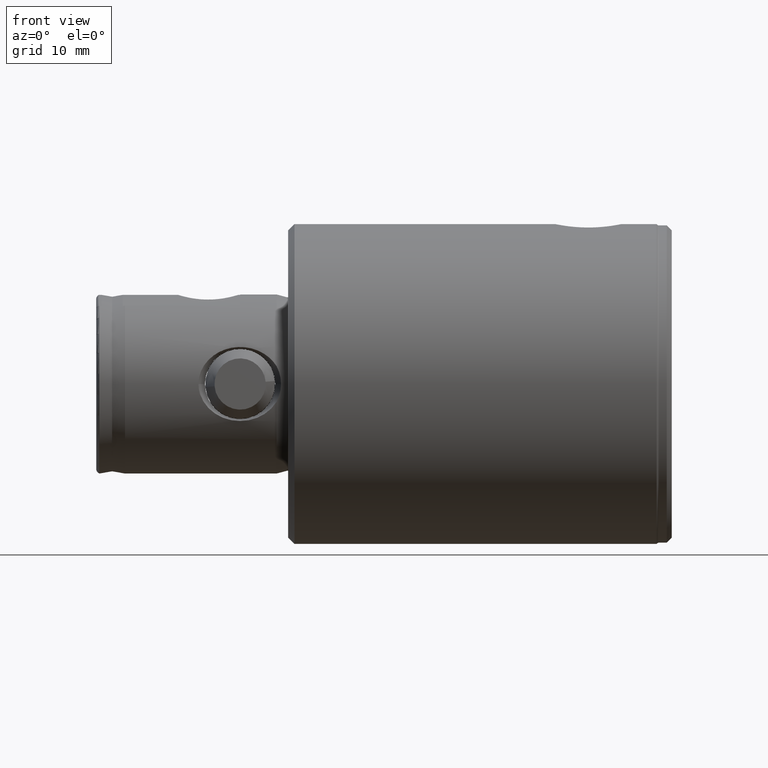
[diagram: clean part render]
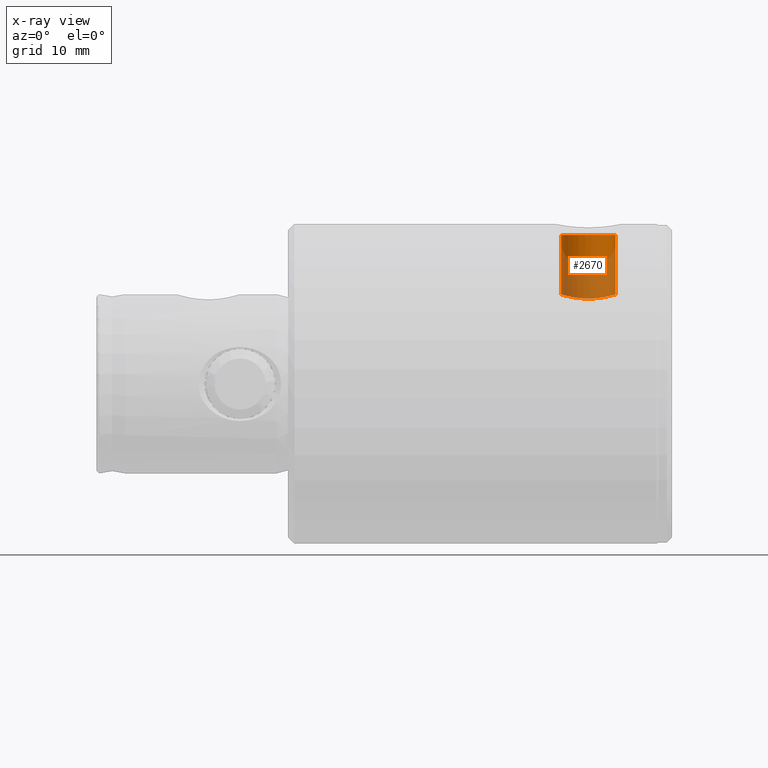
[diagram: x-ray — body ghosted, one internal face saturated and labeled with its STEP entity id]
A machine part, front view, then the same camera in x-ray: the body is ghosted and one INTERNAL B-rep face — a face not visible from any outside direction — is saturated and labeled: STEP entity #2670.
In plain terms, the highlighted cylindrical surface (edge-blend (fillet) strip) has radius 4.25 mm, axis along (0, 0, 1).
Its self-contained STEP definition (entity closure, byte-faithful):
#22 = CARTESIAN_POINT ( 'NONE',  ( 13.33932668607541500, -4.249983948492023900, 13.33035233564601900 ) ) ;
#37 = CARTESIAN_POINT ( 'NONE',  ( 13.63059045167135100, -3.201054713646467300, 10.24079459623629000 ) ) ;
#69 = FACE_OUTER_BOUND ( 'NONE', #2763, .T. ) ;
#87 = VERTEX_POINT ( 'NONE', #1549 ) ;
#159 = DIRECTION ( 'NONE',  ( 1.000000000000000000, 0.0000000000000000000, 0.0000000000000000000 ) ) ;
#341 = VERTEX_POINT ( 'NONE', #3772 ) ;
#404 = CARTESIAN_POINT ( 'NONE',  ( 14.00000000000000000, 1.714460522538868100E-015, 17.29999999999999700 ) ) ;
#656 = CARTESIAN_POINT ( 'NONE',  ( 23.30000000000000100, 5.204748896376247700E-016, 17.29999999999999700 ) ) ;
#763 = CARTESIAN_POINT ( 'NONE',  ( 13.75940299173870900, -2.594885082865043800, 9.672738791779407200 ) ) ;
#779 = CARTESIAN_POINT ( 'NONE',  ( 13.63061436005980000, -3.201041237455417100, 15.85940078557754700 ) ) ;
#796 = CARTESIAN_POINT ( 'NONE',  ( 13.93468727037412000, -1.375147865201417300, 17.08093634506138200 ) ) ;
#1036 = CYLINDRICAL_SURFACE ( 'NONE', #3567, 4.249999999999994700 ) ;
#1098 = CARTESIAN_POINT ( 'NONE',  ( 13.75919563460978000, -2.595942206799388300, 16.42640924192964700 ) ) ;
#1117 = CARTESIAN_POINT ( 'NONE',  ( 13.47025121831974900, -3.816401027698225000, 14.94108567448448200 ) ) ;
#1229 = CARTESIAN_POINT ( 'NONE',  ( 14.00000000000000000, 4.197627457788430000E-017, 8.800000000000006000 ) ) ;
#1256 = EDGE_CURVE ( 'NONE', #3499, #87, #4609, .T. ) ;
#1317 = DIRECTION ( 'NONE',  ( 0.0000000000000000000, 0.0000000000000000000, -1.000000000000000000 ) ) ;
#1324 = DIRECTION ( 'NONE',  ( 0.0000000000000000000, 0.0000000000000000000, -1.000000000000000000 ) ) ;
#1488 = CARTESIAN_POINT ( 'NONE',  ( 13.99161468989642300, -0.5577369079409398900, 17.27262415576947100 ) ) ;
#1505 = CARTESIAN_POINT ( 'NONE',  ( 13.95884723832719800, -1.107042985317447700, 8.937258822649381400 ) ) ;
#1549 = CARTESIAN_POINT ( 'NONE',  ( 23.30000000000000100, 0.0000000000000000000, 8.800000000000004300 ) ) ;
#1827 = CARTESIAN_POINT ( 'NONE',  ( 13.83801929084845000, -2.136259010188938500, 16.73448812610610800 ) ) ;
#1844 = CARTESIAN_POINT ( 'NONE',  ( 13.40736410117609400, -4.031770398640691000, 14.42329868750436000 ) ) ;
#1858 = CARTESIAN_POINT ( 'NONE',  ( 13.34814020817882100, -4.222608495657211400, 12.49316191261329900 ) ) ;
#1874 = CARTESIAN_POINT ( 'NONE',  ( 14.00000000000000000, 4.197627457788430000E-017, 8.800000000000006000 ) ) ;
#1888 = CARTESIAN_POINT ( 'NONE',  ( 13.87409137768994100, -1.891086138219405100, 9.233795946973918600 ) ) ;
#2213 = CARTESIAN_POINT ( 'NONE',  ( 13.38246741836600000, -4.112521852443302700, 14.15762351158339000 ) ) ;
#2223 = CARTESIAN_POINT ( 'NONE',  ( 13.33931646227546300, -4.250016037563900900, 12.77013454126730900 ) ) ;
#2290 = CARTESIAN_POINT ( 'NONE',  ( 25.00000000000000000, 5.204748896376245800E-016, 17.29999999999999700 ) ) ;
#2345 = LINE ( 'NONE', #2290, #2908 ) ;
#2390 = CARTESIAN_POINT ( 'NONE',  ( 23.30000000000000100, 0.0000000000000000000, 13.05000000000000100 ) ) ;
#2480 = ORIENTED_EDGE ( 'NONE', *, *, #3465, .F. ) ;
#2570 = CARTESIAN_POINT ( 'NONE',  ( 13.38218684644611200, -4.113434663587251600, 11.94539761381763800 ) ) ;
#2588 = CARTESIAN_POINT ( 'NONE',  ( 13.71621412343870700, -2.811621855963745400, 9.851067550047290000 ) ) ;
#2625 = VERTEX_POINT ( 'NONE', #1229 ) ;
#2670 = ADVANCED_FACE ( 'NONE', ( #69 ), #1036, .F. ) ;
#2752 = ORIENTED_EDGE ( 'NONE', *, *, #4345, .T. ) ;
#2763 = EDGE_LOOP ( 'NONE', ( #3796, #2752, #4266, #2480 ) ) ;
#2908 = VECTOR ( 'NONE', #159, 1000.000000000000000 ) ;
#2930 = CARTESIAN_POINT ( 'NONE',  ( 13.46980004449781100, -3.817954335628924500, 11.16252591277617700 ) ) ;
#2943 = CARTESIAN_POINT ( 'NONE',  ( 13.71680487309033900, -2.808839068035712500, 16.25153414283997600 ) ) ;
#3169 = DIRECTION ( 'NONE',  ( 1.000000000000000000, 0.0000000000000000000, 0.0000000000000000000 ) ) ;
#3255 = CARTESIAN_POINT ( 'NONE',  ( 13.95871042767950100, -1.109394107247935600, 17.16228281300919900 ) ) ;
#3269 = CARTESIAN_POINT ( 'NONE',  ( 13.87457091845613100, -1.887544119491204800, 16.86793879810546000 ) ) ;
#3283 = CARTESIAN_POINT ( 'NONE',  ( 13.99145706630628500, -0.5604369331183652900, 8.827904003079416000 ) ) ;
#3301 = CARTESIAN_POINT ( 'NONE',  ( 13.58769960150436900, -3.376420439493240000, 10.45378158391091700 ) ) ;
#3319 = CARTESIAN_POINT ( 'NONE',  ( 13.50726453199491100, -3.684955578275322300, 15.18530457971730200 ) ) ;
#3384 = AXIS2_PLACEMENT_3D ( 'NONE', #2390, #3457, #1324 ) ;
#3450 = DIRECTION ( 'NONE',  ( 1.000000000000000000, 0.0000000000000000000, 0.0000000000000000000 ) ) ;
#3457 = DIRECTION ( 'NONE',  ( 1.000000000000000000, 0.0000000000000000000, 0.0000000000000000000 ) ) ;
#3465 = EDGE_CURVE ( 'NONE', #2625, #87, #4413, .T. ) ;
#3499 = VERTEX_POINT ( 'NONE', #656 ) ;
#3538 = CARTESIAN_POINT ( 'NONE',  ( 25.00000000000000000, 0.0000000000000000000, 13.05000000000000100 ) ) ;
#3567 = AXIS2_PLACEMENT_3D ( 'NONE', #3538, #3450, #1317 ) ;
#3611 = CARTESIAN_POINT ( 'NONE',  ( 13.58718470714661900, -3.378387852960554200, 15.64324483552801600 ) ) ;
#3629 = CARTESIAN_POINT ( 'NONE',  ( 13.99999999999999600, -0.2825293081335512000, 8.800000000000006000 ) ) ;
#3648 = CARTESIAN_POINT ( 'NONE',  ( 13.83833422969328500, -2.134269202711549100, 9.364322744435682500 ) ) ;
#3660 = CARTESIAN_POINT ( 'NONE',  ( 13.93436805029888200, -1.378406825819494800, 9.020159459850493300 ) ) ;
#3749 = B_SPLINE_CURVE_WITH_KNOTS ( 'NONE', 3,
 ( #404, #3962, #1488, #3255, #796, #3269, #1827, #1098, #2943, #779, #3611, #3319, #1117, #1844, #2213, #4354, #22, #2223, #1858, #2570, #3976, #2930, #4332, #3301, #37, #2588, #763, #3648, #1888, #3660, #1505, #3283, #3629, #1874 ),
 .UNSPECIFIED., .F., .F.,
 ( 4, 2, 2, 2, 2, 2, 2, 2, 2, 2, 2, 2, 2, 2, 2, 2, 4 ),
 ( 0.01336677257313558800, 0.01420197166329698100, 0.01503717075345837300, 0.01587236984361976500, 0.01670756893378115900, 0.01754276802394255000, 0.01837796711410394700, 0.01921316620426534400, 0.02004836529442674200, 0.02088356438458813900, 0.02171876347474953300, 0.02255396256491093400, 0.02338916165507232800, 0.02422436074523372600, 0.02505955983539512300, 0.02589475892555651700, 0.02672995801571791800 ),
 .UNSPECIFIED. ) ;
#3772 = CARTESIAN_POINT ( 'NONE',  ( 14.00000000000000000, 1.714460522538868100E-015, 17.29999999999999700 ) ) ;
#3796 = ORIENTED_EDGE ( 'NONE', *, *, #4214, .F. ) ;
#3891 = CARTESIAN_POINT ( 'NONE',  ( 25.00000000000000000, 0.0000000000000000000, 8.800000000000006000 ) ) ;
#3962 = CARTESIAN_POINT ( 'NONE',  ( 14.00000000000000200, -0.2783840924533206300, 17.30000000000000100 ) ) ;
#3976 = CARTESIAN_POINT ( 'NONE',  ( 13.40765285352674900, -4.030773313772062500, 11.67442730767433500 ) ) ;
#4214 = EDGE_CURVE ( 'NONE', #341, #2625, #3749, .T. ) ;
#4266 = ORIENTED_EDGE ( 'NONE', *, *, #1256, .T. ) ;
#4332 = CARTESIAN_POINT ( 'NONE',  ( 13.50666436384166900, -3.687250087460745500, 10.91815764166565600 ) ) ;
#4345 = EDGE_CURVE ( 'NONE', #341, #3499, #2345, .T. ) ;
#4354 = CARTESIAN_POINT ( 'NONE',  ( 13.34842471670386700, -4.221709105675159000, 13.61288369784125000 ) ) ;
#4413 = LINE ( 'NONE', #3891, #4466 ) ;
#4466 = VECTOR ( 'NONE', #3169, 1000.000000000000000 ) ;
#4609 = CIRCLE ( 'NONE', #3384, 4.249999999999996400 ) ;